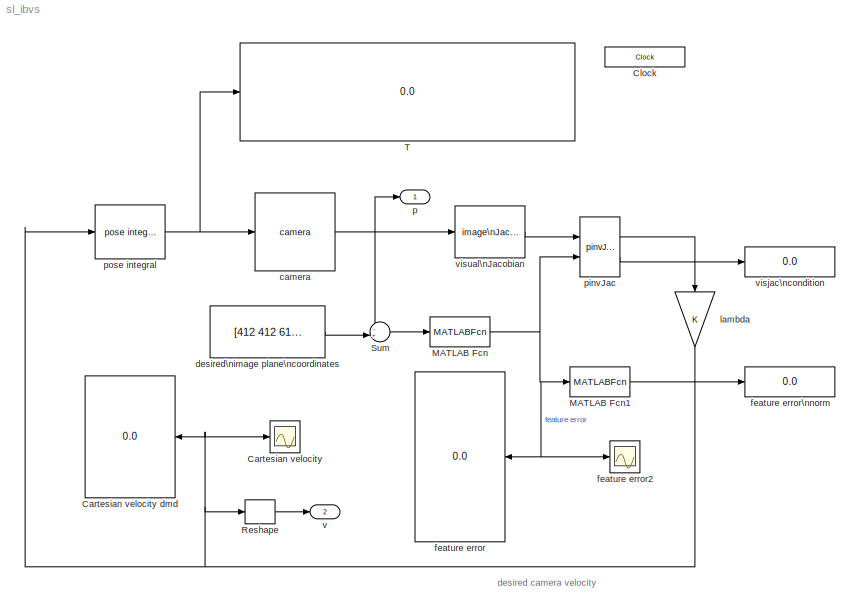
MODEL sl_ibvs
KIND model
CONFIG InitFcn = cam = CentralCamera('default')
BLOCK [Scope] Cartesian velocity
  DataFormat = StructureWithTime
  Floating = off
  NumInputPorts = 1
  Ports = [1]
  SID = 50
  SampleTime = 0
  ShowLegends = off
  TimeRange = 10
  YMax = 0.75
  YMin = -3
  ZoomMode = yonly
BLOCK [Display] Cartesian velocity dmd
  Decimation = 1
  Format = bank
  Lockdown = off
  Ports = [1]
  SID = 1
BLOCK [Clock] Clock
  DisplayTime = on
  SID = 39
BLOCK [MATLABFcn] MATLAB Fcn
  MATLABFcn = u(:)
  Output1D = off
  Ports = [1, 1]
  SID = 3
BLOCK [MATLABFcn] MATLAB Fcn1
  MATLABFcn = norm(u)
  Ports = [1, 1]
  SID = 4
BLOCK [Reshape] Reshape
  OutputDimensionality = Customize
  OutputDimensions = 6
  Ports = [1, 1]
  SID = 69
BLOCK [Sum] Sum
  IconShape = round
  Inputs = -+|
  Ports = [2, 1]
  SID = 10
BLOCK [Display] T
  Decimation = 1
  Lockdown = off
  Ports = [1]
  SID = 40
BLOCK [Reference] camera  REF=roblocks/Vision/camera  (lib defined in mdl_2a292b13c81b, mdl_69400f8cfe22, +12 more)
  Ports = [1, 1]
  SID = 47
  SourceBlock = roblocks/Vision/camera
  cam = cam
  points = mkgrid(2, 0.5, transl(0,0,3))
BLOCK [Constant] desired\nimage plane\ncoordinates
  SID = 16
  Value = [412 412 612 612; 412 612 612 412]
  VectorParams1D = off
BLOCK [Display] feature error
  Decimation = 1
  Format = bank
  Lockdown = off
  Ports = [1]
  SID = 17
BLOCK [Scope] feature error2
  DataFormat = StructureWithTime
  Floating = off
  NumInputPorts = 1
  Ports = [1]
  SID = 19
  SampleTime = 0
  SaveName = ScopeData1
  ShowLegends = off
  TimeRange = 20
  YMax = 150
  YMin = -150
  ZoomMode = yonly
BLOCK [Display] feature error\nnorm
  Decimation = 1
  Lockdown = off
  Ports = [1]
  SID = 18
BLOCK [Gain] lambda
  SID = 51
BLOCK [Outport] p
  IconDisplay = Port number
  SID = 52
BLOCK [Reference] pinvJac  REF=roblocks/Vision/pinvJac  (lib defined in mdl_2a292b13c81b, mdl_69400f8cfe22, +12 more)
  Ports = [2, 2]
  SID = 54
  SourceBlock = roblocks/Vision/pinvJac
BLOCK [Reference] pose integral  REF=roblocks/Kinematics/pose integral  (lib defined in mdl_2a292b13c81b, mdl_69400f8cfe22, +12 more)
  Ports = [1, 1]
  SID = 71
  SourceBlock = roblocks/Kinematics/pose integral
  T0 = transl(0,0,1)*trotz(1.5)
  dt = 0.02
BLOCK [Outport] v
  IconDisplay = Port number
  Port = 2
  SID = 53
BLOCK [Display] visjac\ncondition
  Decimation = 1
  Lockdown = off
  Ports = [1]
  SID = 26
BLOCK [Reference] visual\nJacobian  REF=roblocks/Vision/image\nJacobian  (lib defined in mdl_2a292b13c81b, mdl_69400f8cfe22, +12 more)
  Ports = [1, 1]
  SID = 48
  SourceBlock = roblocks/Vision/image\nJacobian
  cam = cam
  z = 3
ANNOTATION (root): desired camera velocity
LINE MATLAB Fcn1:1 -> feature error\nnorm:1
NET MATLAB Fcn:1 -> MATLAB Fcn1:1, feature error2:1, feature error:1, pinvJac:2
LINE Reshape:1 -> v:1
LINE Sum:1 -> MATLAB Fcn:1
NET camera:1 -> Sum:1, p:1, visual\nJacobian:1
LINE desired\nimage plane\ncoordinates:1 -> Sum:2
NET lambda:1 -> Cartesian velocity dmd:1, Cartesian velocity:1, Reshape:1, pose integral:1
LINE pinvJac:1 -> lambda:1
LINE pinvJac:2 -> visjac\ncondition:1
NET pose integral:1 -> T:1, camera:1
LINE visual\nJacobian:1 -> pinvJac:1
note: NET lines group one-source signal fan-out (src -> all destinations, sorted); 1:1 wires keep LINE
